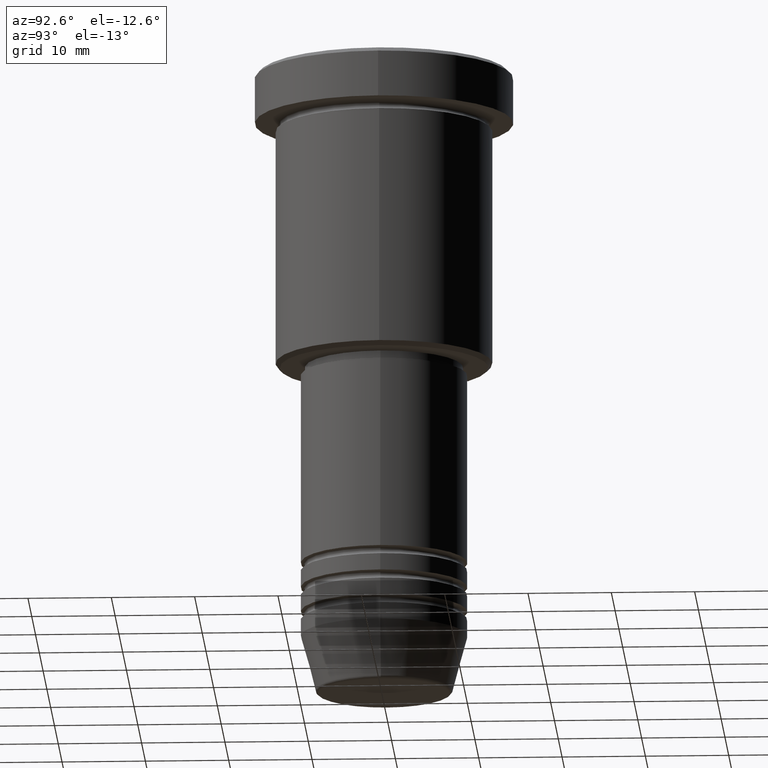
[diagram: clean part render]
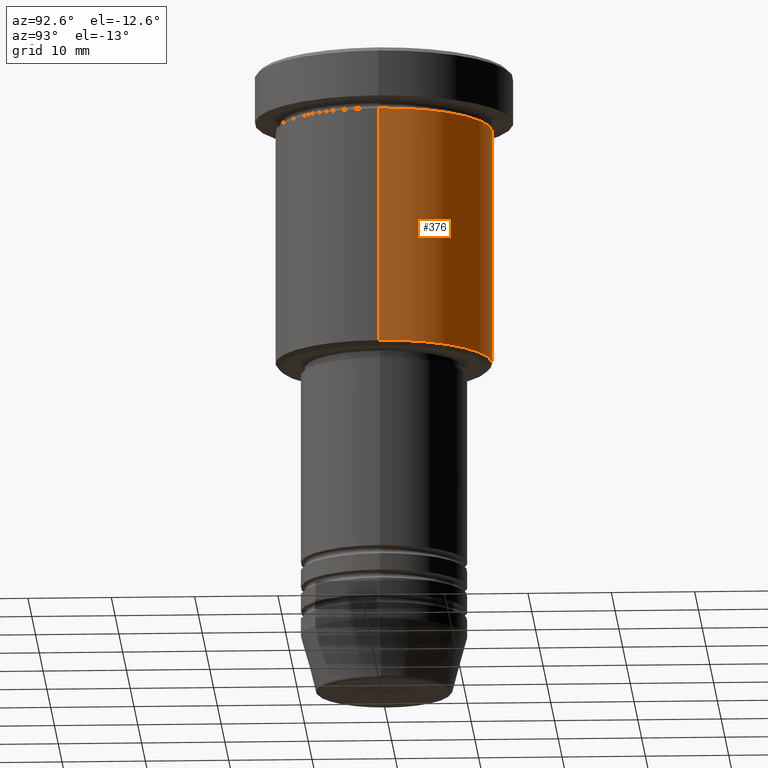
[diagram: same view with one face highlighted and labeled with its STEP entity id]
A machine part, auxiliary view. The second image highlights one B-rep face of the part: STEP entity #376.
In plain terms, the highlighted cylindrical surface (partial cylindrical patch) has radius 13 mm, axis along (-0, -0, 1).
Its self-contained STEP definition (entity closure, byte-faithful):
#5 = VERTEX_POINT ( 'NONE', #377 ) ;
#105 = DIRECTION ( 'NONE',  ( -0.000000000000000000, -0.000000000000000000, 1.000000000000000000 ) ) ;
#200 = CARTESIAN_POINT ( 'NONE',  ( 13.00000000000000000, 0.000000000000000000, -6.999999999999995559 ) ) ;
#209 = ORIENTED_EDGE ( 'NONE', *, *, #822, .T. ) ;
#229 = CARTESIAN_POINT ( 'NONE',  ( -13.00000000000000000, 1.592040838891559095E-15, -35.50000000000000711 ) ) ;
#294 = DIRECTION ( 'NONE',  ( -0.000000000000000000, -0.000000000000000000, 1.000000000000000000 ) ) ;
#301 = DIRECTION ( 'NONE',  ( -0.000000000000000000, -0.000000000000000000, 1.000000000000000000 ) ) ;
#328 = EDGE_CURVE ( 'NONE', #537, #5, #905, .T. ) ;
#348 = AXIS2_PLACEMENT_3D ( 'NONE', #1171, #430, #1150 ) ;
#376 = ADVANCED_FACE ( 'NONE', ( #838 ), #392, .T. ) ;
#377 = CARTESIAN_POINT ( 'NONE',  ( -13.00000000000000000, 1.592040838891559095E-15, -6.999999999999995559 ) ) ;
#392 = CYLINDRICAL_SURFACE ( 'NONE', #488, 13.00000000000000000 ) ;
#405 = ORIENTED_EDGE ( 'NONE', *, *, #981, .F. ) ;
#415 = EDGE_LOOP ( 'NONE', ( #209, #979, #1152, #405 ) ) ;
#430 = DIRECTION ( 'NONE',  ( -0.000000000000000000, -0.000000000000000000, 1.000000000000000000 ) ) ;
#488 = AXIS2_PLACEMENT_3D ( 'NONE', #1116, #301, #679 ) ;
#496 = CARTESIAN_POINT ( 'NONE',  ( 13.00000000000000000, 0.000000000000000000, -35.50000000000000711 ) ) ;
#537 = VERTEX_POINT ( 'NONE', #229 ) ;
#538 = DIRECTION ( 'NONE',  ( 1.000000000000000000, 0.000000000000000000, 0.000000000000000000 ) ) ;
#679 = DIRECTION ( 'NONE',  ( 1.000000000000000000, 0.000000000000000000, 0.000000000000000000 ) ) ;
#751 = LINE ( 'NONE', #951, #830 ) ;
#778 = CARTESIAN_POINT ( 'NONE',  ( 0.000000000000000000, 0.000000000000000000, -6.999999999999995559 ) ) ;
#822 = EDGE_CURVE ( 'NONE', #857, #537, #873, .T. ) ;
#830 = VECTOR ( 'NONE', #294, 1000.000000000000000 ) ;
#838 = FACE_OUTER_BOUND ( 'NONE', #415, .T. ) ;
#850 = CARTESIAN_POINT ( 'NONE',  ( -13.00000000000000000, 1.592040838891559095E-15, 0.000000000000000000 ) ) ;
#857 = VERTEX_POINT ( 'NONE', #496 ) ;
#873 = CIRCLE ( 'NONE', #348, 13.00000000000000000 ) ;
#905 = LINE ( 'NONE', #850, #925 ) ;
#915 = VERTEX_POINT ( 'NONE', #200 ) ;
#925 = VECTOR ( 'NONE', #105, 1000.000000000000000 ) ;
#951 = CARTESIAN_POINT ( 'NONE',  ( 13.00000000000000000, 0.000000000000000000, 0.000000000000000000 ) ) ;
#962 = AXIS2_PLACEMENT_3D ( 'NONE', #778, #1136, #538 ) ;
#979 = ORIENTED_EDGE ( 'NONE', *, *, #328, .T. ) ;
#981 = EDGE_CURVE ( 'NONE', #857, #915, #751, .T. ) ;
#1015 = CIRCLE ( 'NONE', #962, 13.00000000000000000 ) ;
#1056 = EDGE_CURVE ( 'NONE', #915, #5, #1015, .T. ) ;
#1116 = CARTESIAN_POINT ( 'NONE',  ( 0.000000000000000000, 0.000000000000000000, 0.000000000000000000 ) ) ;
#1136 = DIRECTION ( 'NONE',  ( -0.000000000000000000, -0.000000000000000000, 1.000000000000000000 ) ) ;
#1150 = DIRECTION ( 'NONE',  ( -1.000000000000000000, 0.000000000000000000, 0.000000000000000000 ) ) ;
#1152 = ORIENTED_EDGE ( 'NONE', *, *, #1056, .F. ) ;
#1171 = CARTESIAN_POINT ( 'NONE',  ( 0.000000000000000000, 0.000000000000000000, -35.50000000000000711 ) ) ;